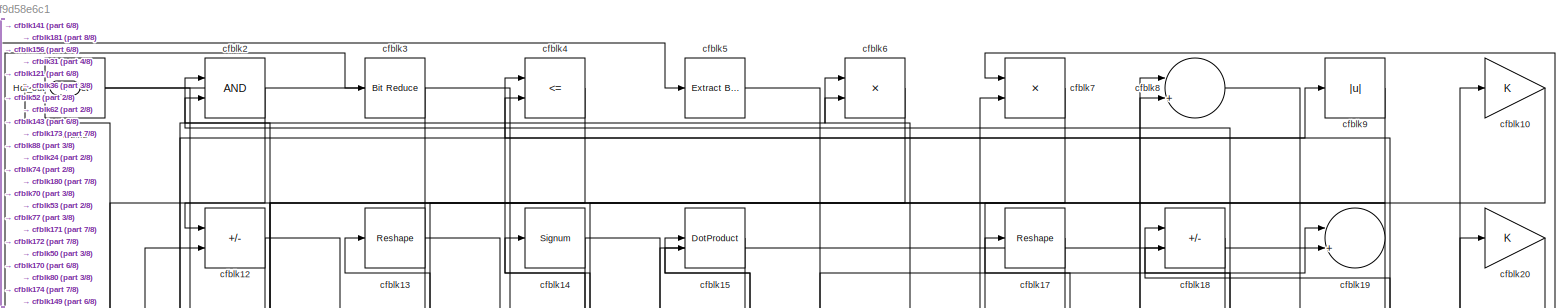
[diagram: root canvas - part 1/8, full width, top band]
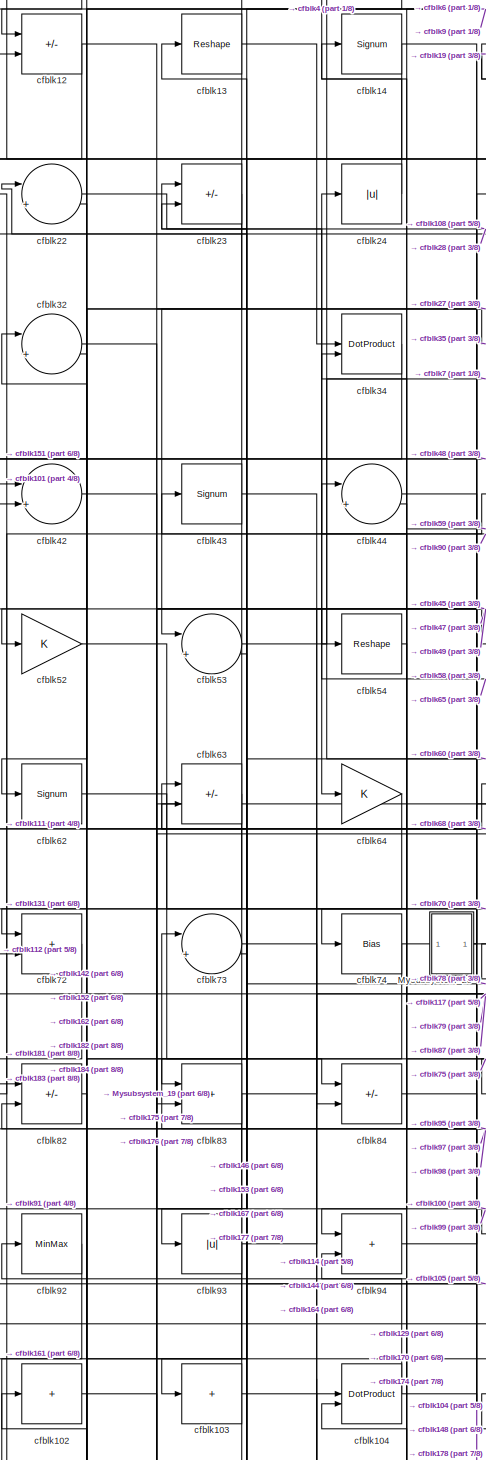
[diagram: root canvas - part 2/8, top left region]
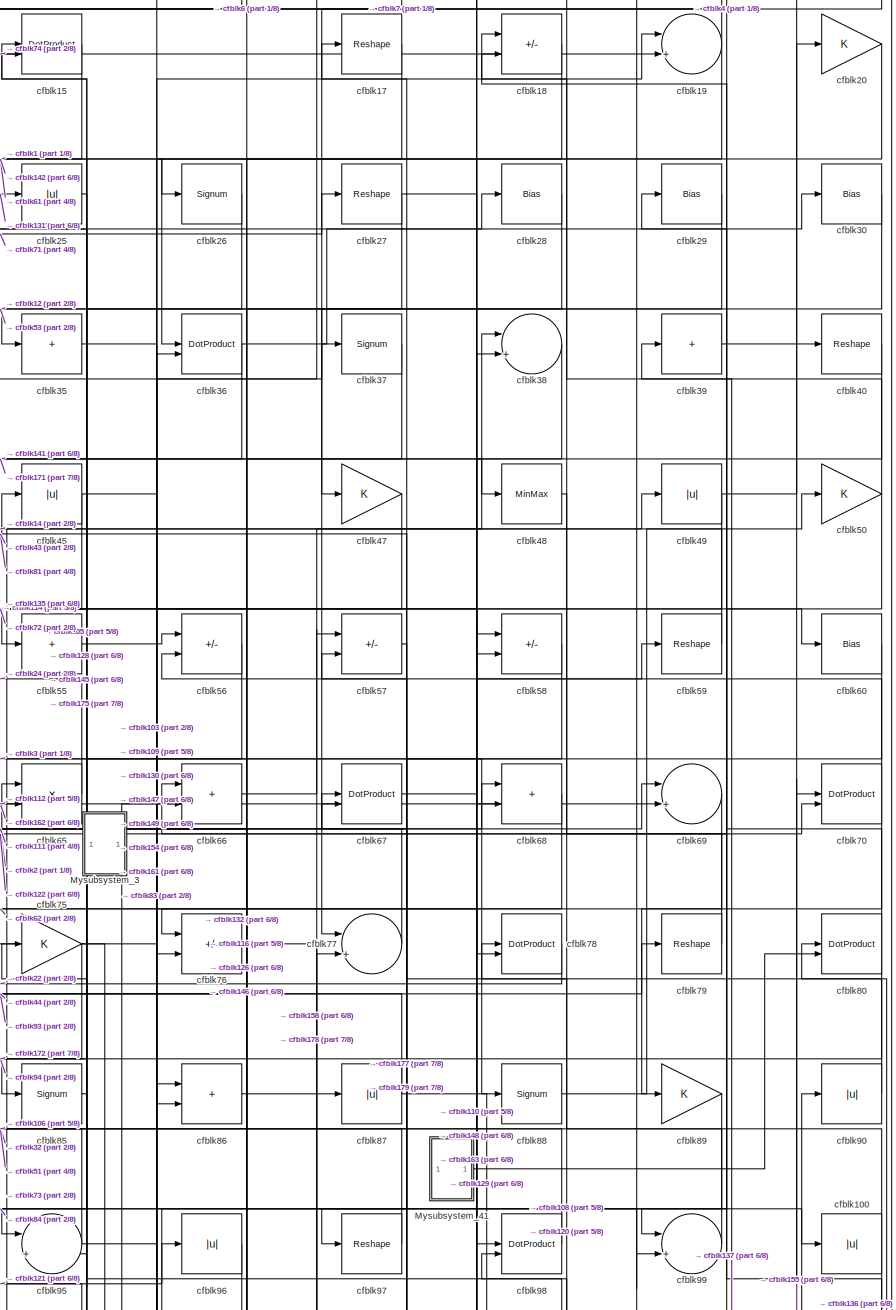
[diagram: root canvas - part 3/8, top right region]
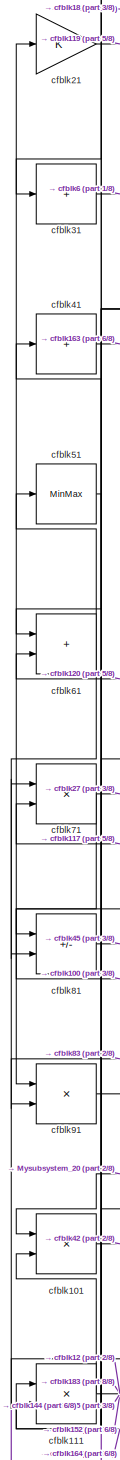
[diagram: root canvas - part 4/8, middle left region]
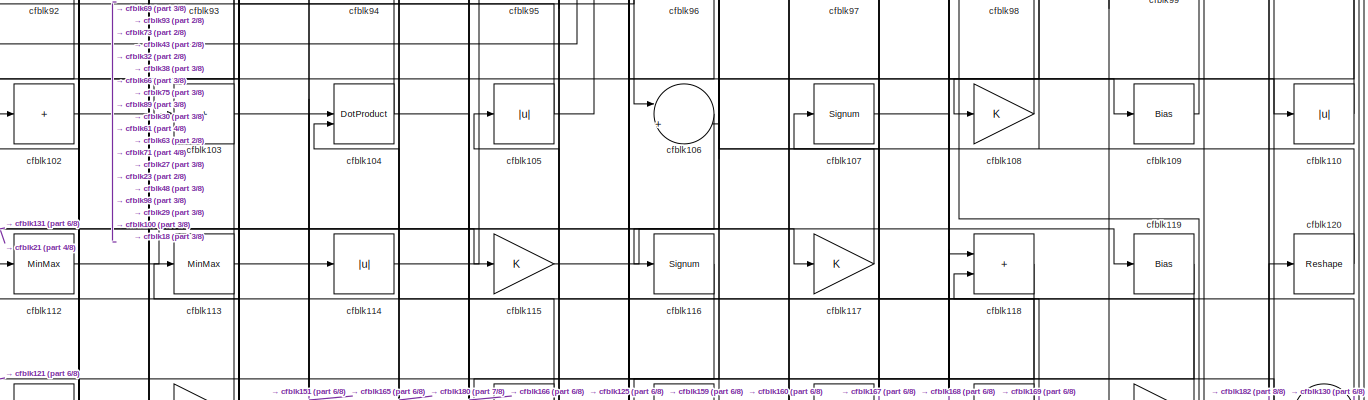
[diagram: root canvas - part 5/8, full width, middle band]
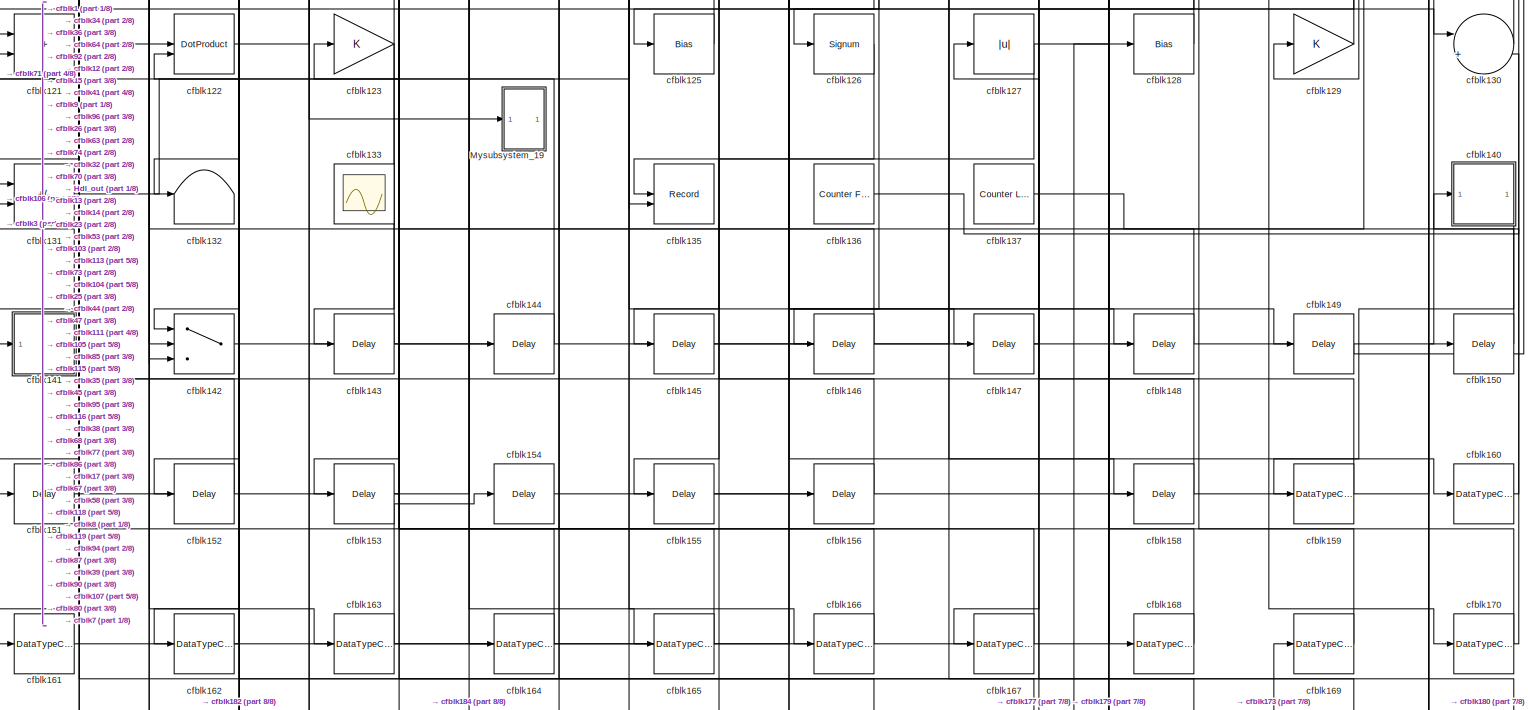
[diagram: root canvas - part 6/8, full width, bottom band]
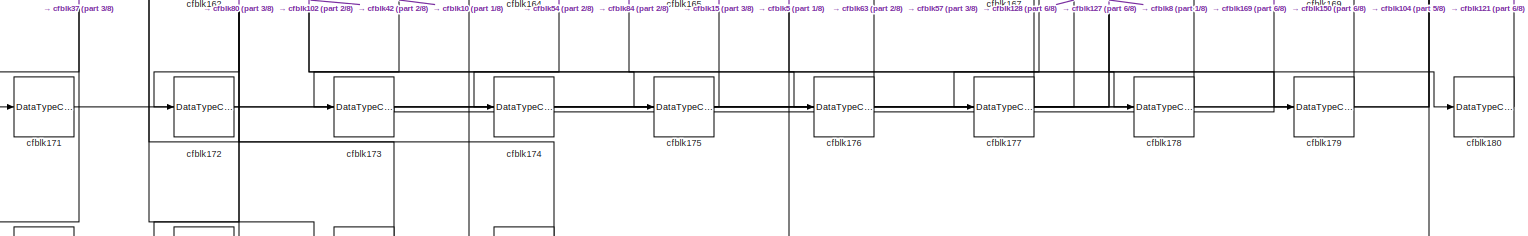
[diagram: root canvas - part 7/8, full width, bottom band]
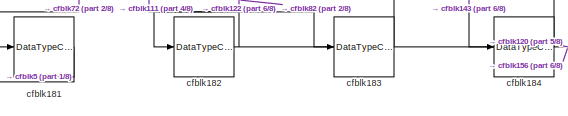
[diagram: root canvas - part 8/8, bottom left region]
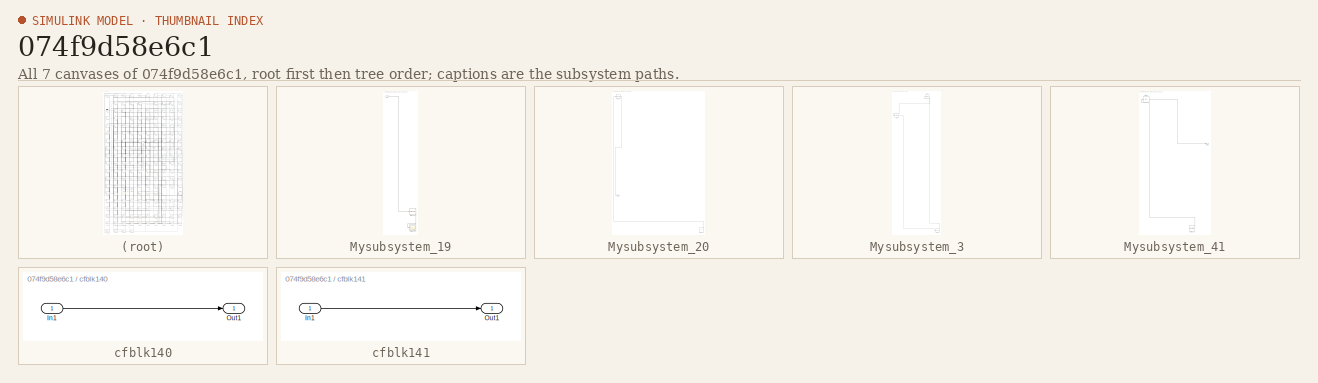
[diagram: thumbnail index - all 7 canvases of the model, root first then tree order]
MODEL slx_074f9d58e6c1
KIND model
CONFIG AbsTol = auto
CONFIG EnableMultiTasking = off
CONFIG FixedStep = auto
CONFIG MaxStep = auto
CONFIG MinStep = auto
CONFIG RelTol = 1e-3
CONFIG SampleTimeConstraint = Unconstrained
CONFIG SolverName = VariableStepAuto
CONFIG StartTime = 0.0
CONFIG StopTime = 10.0
BLOCK [Outport] Hdl_out
  OutDataTypeStr = uint8
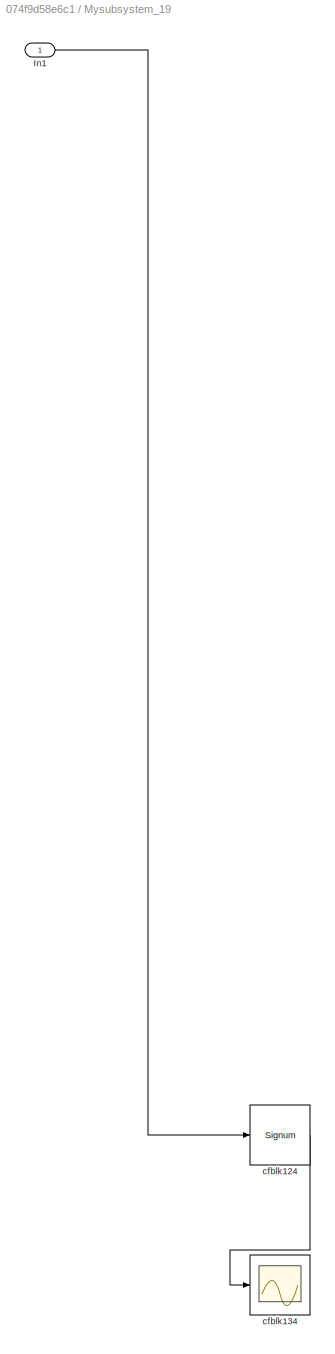
BLOCK [SubSystem] Mysubsystem_19
  RTWFcnName = Mysubsystem_19
  RTWFcnNameOpts = User specified
  RTWFileNameOpts = Use function name
  RTWSystemCode = Reusable function
  TreatAsAtomicUnit = on
BLOCK [Inport] Mysubsystem_19/In1
BLOCK [Signum] Mysubsystem_19/cfblk124
BLOCK [Scope] Mysubsystem_19/cfblk134
  Floating = off
  NumInputPorts = 1
  ScopeSpecificationString = Simulink.scopes.TimeScopeBlockCfg('CurrentConfiguration', extmgr.ConfigurationSet(extmgr.Configuration('Core','General UI',true),extmgr.Configuration('Core','Source UI',true),extmgr.Configuration('Sources','WiredSimulink',true,'DataLoggingVariableName','ScopeData2','DataLoggingSaveFormat','Array','DataLoggingLimitDataPoints',true,'DataLoggingDecimation','1'),extmgr.Configuration('Visuals','Time Do...<+868ch>
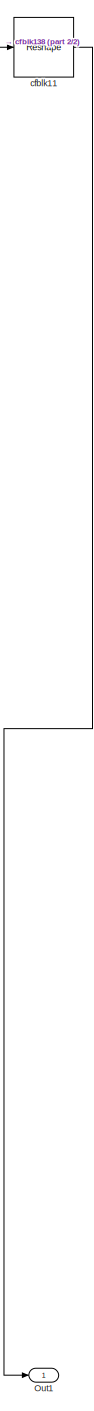
[diagram: Mysubsystem_20 - part 1/2, left side, full height]
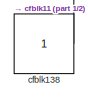
[diagram: Mysubsystem_20 - part 2/2, bottom right region]
BLOCK [SubSystem] Mysubsystem_20
  RTWFcnName = Mysubsystem_20
  RTWFcnNameOpts = User specified
  RTWFileNameOpts = Use function name
  RTWSystemCode = Reusable function
  TreatAsAtomicUnit = on
BLOCK [Outport] Mysubsystem_20/Out1
BLOCK [Reshape] Mysubsystem_20/cfblk11
BLOCK [Constant] Mysubsystem_20/cfblk138
  SampleTime = -1
BLOCK [SubSystem] Mysubsystem_3
  RTWFcnName = Mysubsystem_3
  RTWFcnNameOpts = User specified
  RTWFileNameOpts = Use function name
  RTWSystemCode = Reusable function
  TreatAsAtomicUnit = on
BLOCK [Delay] Mysubsystem_3/cfblk157
  InputPortMap = u0
  SampleTime = 1
BLOCK [MinMax] Mysubsystem_3/cfblk16
BLOCK [Signum] Mysubsystem_3/cfblk33
BLOCK [SubSystem] Mysubsystem_41
  RTWFcnName = Mysubsystem_41
  RTWFcnNameOpts = User specified
  RTWFileNameOpts = Use function name
  RTWSystemCode = Reusable function
  TreatAsAtomicUnit = on
BLOCK [Outport] Mysubsystem_41/Out1
BLOCK [Reference] Mysubsystem_41/cfblk139  REF=hdlsllib/Sources/Counter
Free-Running
  SourceBlock = hdlsllib/Sources/Counter\nFree-Running
  SourceType = Counter Free-Running
BLOCK [Abs] Mysubsystem_41/cfblk46
  SaturateOnIntegerOverflow = off
BLOCK [Reference] cfblk1  REF=simulink/Logic and Bit
Operations/Bit Set
  LibrarySourceBlock = hdlsllib/Logic and Bit\nOperations/Bit Set
  SourceBlock = simulink/Logic and Bit\nOperations/Bit Set
  SourceType = Bit Set
BLOCK [Gain] cfblk10
  OutDataTypeStr = uint8
BLOCK [Abs] cfblk100
  OutDataTypeStr = uint8
  SaturateOnIntegerOverflow = off
BLOCK [Product] cfblk101
  Inputs = */
  OutDataTypeStr = uint8
  RndMeth = Zero
  SaturateOnIntegerOverflow = on
BLOCK [Sum] cfblk102
  IconShape = rectangular
  Inputs = +
  OutDataTypeStr = uint8
BLOCK [Sum] cfblk103
  IconShape = rectangular
  Inputs = +
  OutDataTypeStr = uint8
BLOCK [DotProduct] cfblk104
  OutDataTypeStr = uint8
BLOCK [Abs] cfblk105
  OutDataTypeStr = uint8
  SaturateOnIntegerOverflow = off
BLOCK [Sum] cfblk106
  Inputs = |++
  OutDataTypeStr = uint8
BLOCK [Signum] cfblk107
BLOCK [Gain] cfblk108
  OutDataTypeStr = uint8
BLOCK [Bias] cfblk109
  Bias = 0.0
  SaturateOnIntegerOverflow = off
BLOCK [Abs] cfblk110
  OutDataTypeStr = uint8
  SaturateOnIntegerOverflow = off
BLOCK [Product] cfblk111
  Inputs = */
  OutDataTypeStr = uint8
  RndMeth = Zero
  SaturateOnIntegerOverflow = on
BLOCK [MinMax] cfblk112
  OutDataTypeStr = uint8
BLOCK [MinMax] cfblk113
  OutDataTypeStr = uint8
BLOCK [Abs] cfblk114
  OutDataTypeStr = uint8
  SaturateOnIntegerOverflow = off
BLOCK [Gain] cfblk115
  OutDataTypeStr = uint8
BLOCK [Signum] cfblk116
BLOCK [Gain] cfblk117
  OutDataTypeStr = uint8
BLOCK [Sum] cfblk118
  IconShape = rectangular
  OutDataTypeStr = uint8
BLOCK [Bias] cfblk119
  Bias = 0.0
  SaturateOnIntegerOverflow = off
BLOCK [Sum] cfblk12
  IconShape = rectangular
  Inputs = +-
  OutDataTypeStr = uint8
BLOCK [Reshape] cfblk120
BLOCK [Sum] cfblk121
  IconShape = rectangular
  OutDataTypeStr = uint8
BLOCK [DotProduct] cfblk122
  OutDataTypeStr = uint8
BLOCK [Gain] cfblk123
  OutDataTypeStr = uint8
BLOCK [Bias] cfblk125
  Bias = 0.0
  SaturateOnIntegerOverflow = off
BLOCK [Signum] cfblk126
BLOCK [Abs] cfblk127
  OutDataTypeStr = uint8
  SaturateOnIntegerOverflow = off
BLOCK [Bias] cfblk128
  Bias = 0.0
  SaturateOnIntegerOverflow = off
BLOCK [Gain] cfblk129
  OutDataTypeStr = uint8
BLOCK [Reshape] cfblk13
BLOCK [Sum] cfblk130
  Inputs = |++
  OutDataTypeStr = uint8
BLOCK [Sum] cfblk131
  IconShape = rectangular
  Inputs = +-
  OutDataTypeStr = uint8
BLOCK [Terminator] cfblk132
BLOCK [Scope] cfblk133
  Floating = on
  NumInputPorts = 1
  ScopeSpecificationString = Simulink.scopes.TimeScopeBlockCfg('CurrentConfiguration', extmgr.ConfigurationSet(extmgr.Configuration('Core','General UI',true,'FigureColor',[0.156862745098039 0.156862745098039 0.156862745098039]),extmgr.Configuration('Core','Source UI',true),extmgr.Configuration('Sources','WiredSimulink',true,'DataLoggingVariableName','ScopeData1','DataLoggingSaveFormat','StructureWithTime','DataLoggingLimitDat...<+2713ch>
BLOCK [Record] cfblk135
  CompatibilityTag = XY
  FileSettingsInternal = {"entries":[{"content":{"excelSettings":{"content":{},"type":"Streamout.ExcelSettings"}},"type":"Streamout.FileSettingStorage","uuid":""}],"packageUris":["http:\/\/schema.mathworks.com\/mf0\/streamout_blocks\/R2020a"],"version":"1.0"}
  Layout = [1 1]
  SignalsInternal = {"entries":[{"content":{"signals":[{"content":{"blockPath":[],"dimensions":[1],"domain":"","lineColor":"#a2142f","plots":[1],"port":1,"signalID":34484,"signalName":"cfblk126"},"type":"RecordBlkView.Signal","uuid":""},{"content":{"blockPath":[],"dimensions":[1],"domain":"","lineColor":"#139fff","plots":[1],"port":2,"signalID":34487,"signalName":"cfblk47"},"type":"RecordBlkView.Signal","uuid":""}]},...<+143ch>
  VisualizationBindings = {"xyplotplugin":{"info":[{"series":[{"bindingParametersList":[{"parameter":"X-Axis","signalID":34484,"signalName":"cfblk126"},{"parameter":"Y-Axis","signalID":34487,"signalName":"cfblk47"}],"seriesID":17854}],"subplotID":1}]}}
  st = -1
BLOCK [Reference] cfblk136  REF=hdlsllib/Sources/Counter
Free-Running
  SourceBlock = hdlsllib/Sources/Counter\nFree-Running
  SourceType = Counter Free-Running
BLOCK [Reference] cfblk137  REF=hdlsllib/Sources/Counter
Limited
  SourceBlock = hdlsllib/Sources/Counter\nLimited
  SourceType = Counter Limited
BLOCK [Signum] cfblk14
BLOCK [SubSystem] cfblk140
  LibrarySourceBlock = hdlsllib/Ports &\nSubsystems/Subsystem
BLOCK [Inport] cfblk140/In1
BLOCK [Outport] cfblk140/Out1
BLOCK [SubSystem] cfblk141
  LibrarySourceBlock = hdlsllib/Ports &\nSubsystems/Subsystem
BLOCK [Inport] cfblk141/In1
BLOCK [Outport] cfblk141/Out1
BLOCK [Switch] cfblk142
  InputSameDT = off
  OutDataTypeStr = uint8
  SaturateOnIntegerOverflow = off
BLOCK [Delay] cfblk143
  InputPortMap = u0
  SampleTime = 1
BLOCK [Delay] cfblk144
  InputPortMap = u0
  SampleTime = 1
BLOCK [Delay] cfblk145
  InputPortMap = u0
  SampleTime = 1
BLOCK [Delay] cfblk146
  InputPortMap = u0
  SampleTime = 1
BLOCK [Delay] cfblk147
  InputPortMap = u0
  SampleTime = 1
BLOCK [Delay] cfblk148
  InputPortMap = u0
  SampleTime = 1
BLOCK [Delay] cfblk149
  InputPortMap = u0
  SampleTime = 1
BLOCK [DotProduct] cfblk15
  OutDataTypeStr = uint8
BLOCK [Delay] cfblk150
  InputPortMap = u0
  SampleTime = 1
BLOCK [Delay] cfblk151
  InputPortMap = u0
  SampleTime = 1
BLOCK [Delay] cfblk152
  InputPortMap = u0
  SampleTime = 1
BLOCK [Delay] cfblk153
  InputPortMap = u0
  SampleTime = 1
BLOCK [Delay] cfblk154
  InputPortMap = u0
  SampleTime = 1
BLOCK [Delay] cfblk155
  InputPortMap = u0
  SampleTime = 1
BLOCK [Delay] cfblk156
  InputPortMap = u0
  SampleTime = 1
BLOCK [Delay] cfblk158
  InputPortMap = u0
  SampleTime = 1
BLOCK [DataTypeConversion] cfblk159
  OutDataTypeStr = uint8
  RndMeth = Floor
  SaturateOnIntegerOverflow = off
BLOCK [DataTypeConversion] cfblk160
  OutDataTypeStr = uint8
  RndMeth = Floor
  SaturateOnIntegerOverflow = off
BLOCK [DataTypeConversion] cfblk161
  OutDataTypeStr = uint8
  RndMeth = Floor
  SaturateOnIntegerOverflow = off
BLOCK [DataTypeConversion] cfblk162
  OutDataTypeStr = uint8
  RndMeth = Floor
  SaturateOnIntegerOverflow = off
BLOCK [DataTypeConversion] cfblk163
  OutDataTypeStr = uint8
  RndMeth = Floor
  SaturateOnIntegerOverflow = off
BLOCK [DataTypeConversion] cfblk164
  OutDataTypeStr = uint8
  RndMeth = Floor
  SaturateOnIntegerOverflow = off
BLOCK [DataTypeConversion] cfblk165
  OutDataTypeStr = uint8
  RndMeth = Floor
  SaturateOnIntegerOverflow = off
BLOCK [DataTypeConversion] cfblk166
  OutDataTypeStr = uint8
  RndMeth = Floor
  SaturateOnIntegerOverflow = off
BLOCK [DataTypeConversion] cfblk167
  OutDataTypeStr = uint8
  RndMeth = Floor
  SaturateOnIntegerOverflow = off
BLOCK [DataTypeConversion] cfblk168
  OutDataTypeStr = uint8
  RndMeth = Floor
  SaturateOnIntegerOverflow = off
BLOCK [DataTypeConversion] cfblk169
  OutDataTypeStr = uint8
  RndMeth = Floor
  SaturateOnIntegerOverflow = off
BLOCK [Reshape] cfblk17
BLOCK [DataTypeConversion] cfblk170
  OutDataTypeStr = uint8
  RndMeth = Floor
  SaturateOnIntegerOverflow = off
BLOCK [DataTypeConversion] cfblk171
  OutDataTypeStr = uint8
  RndMeth = Floor
  SaturateOnIntegerOverflow = off
BLOCK [DataTypeConversion] cfblk172
  OutDataTypeStr = uint8
  RndMeth = Floor
  SaturateOnIntegerOverflow = off
BLOCK [DataTypeConversion] cfblk173
  OutDataTypeStr = uint8
  RndMeth = Floor
  SaturateOnIntegerOverflow = off
BLOCK [DataTypeConversion] cfblk174
  OutDataTypeStr = uint8
  RndMeth = Floor
  SaturateOnIntegerOverflow = off
BLOCK [DataTypeConversion] cfblk175
  OutDataTypeStr = uint8
  RndMeth = Floor
  SaturateOnIntegerOverflow = off
BLOCK [DataTypeConversion] cfblk176
  OutDataTypeStr = uint8
  RndMeth = Floor
  SaturateOnIntegerOverflow = off
BLOCK [DataTypeConversion] cfblk177
  OutDataTypeStr = uint8
  RndMeth = Floor
  SaturateOnIntegerOverflow = off
BLOCK [DataTypeConversion] cfblk178
  OutDataTypeStr = uint8
  RndMeth = Floor
  SaturateOnIntegerOverflow = off
BLOCK [DataTypeConversion] cfblk179
  OutDataTypeStr = uint8
  RndMeth = Floor
  SaturateOnIntegerOverflow = off
BLOCK [Sum] cfblk18
  IconShape = rectangular
  Inputs = +-
  OutDataTypeStr = uint8
BLOCK [DataTypeConversion] cfblk180
  OutDataTypeStr = uint8
  RndMeth = Floor
  SaturateOnIntegerOverflow = off
BLOCK [DataTypeConversion] cfblk181
  OutDataTypeStr = uint8
  RndMeth = Floor
  SaturateOnIntegerOverflow = off
BLOCK [DataTypeConversion] cfblk182
  OutDataTypeStr = uint8
  RndMeth = Floor
  SaturateOnIntegerOverflow = off
BLOCK [DataTypeConversion] cfblk183
  OutDataTypeStr = uint8
  RndMeth = Floor
  SaturateOnIntegerOverflow = off
BLOCK [DataTypeConversion] cfblk184
  OutDataTypeStr = uint8
  RndMeth = Floor
  SaturateOnIntegerOverflow = off
BLOCK [Sum] cfblk19
  Inputs = |++
  OutDataTypeStr = uint8
BLOCK [Logic] cfblk2
  AllPortsSameDT = off
  OutDataTypeStr = boolean
BLOCK [Gain] cfblk20
  OutDataTypeStr = uint8
BLOCK [Gain] cfblk21
  OutDataTypeStr = uint8
BLOCK [Sum] cfblk22
  Inputs = |++
  OutDataTypeStr = uint8
BLOCK [Sum] cfblk23
  IconShape = rectangular
  Inputs = +-
  OutDataTypeStr = uint8
BLOCK [Abs] cfblk24
  OutDataTypeStr = uint8
  SaturateOnIntegerOverflow = off
BLOCK [Abs] cfblk25
  OutDataTypeStr = uint8
  SaturateOnIntegerOverflow = off
BLOCK [Signum] cfblk26
BLOCK [Reshape] cfblk27
BLOCK [Bias] cfblk28
  Bias = 0.0
  SaturateOnIntegerOverflow = off
BLOCK [Bias] cfblk29
  Bias = 0.0
  SaturateOnIntegerOverflow = off
BLOCK [Reference] cfblk3  REF=hdlsllib/Logic and Bit
Operations/Bit Reduce
  SourceBlock = hdlsllib/Logic and Bit\nOperations/Bit Reduce
  SourceType = Bit Reduce
BLOCK [Bias] cfblk30
  Bias = 0.0
  SaturateOnIntegerOverflow = off
BLOCK [Sum] cfblk31
  IconShape = rectangular
  Inputs = +
  OutDataTypeStr = uint8
BLOCK [Sum] cfblk32
  Inputs = |++
  OutDataTypeStr = uint8
BLOCK [DotProduct] cfblk34
  OutDataTypeStr = uint8
BLOCK [Sum] cfblk35
  IconShape = rectangular
  Inputs = +
  OutDataTypeStr = uint8
BLOCK [DotProduct] cfblk36
  OutDataTypeStr = uint8
BLOCK [Signum] cfblk37
BLOCK [Sum] cfblk38
  Inputs = |++
  OutDataTypeStr = uint8
BLOCK [Sum] cfblk39
  IconShape = rectangular
  Inputs = +
  OutDataTypeStr = uint8
BLOCK [RelationalOperator] cfblk4
  InputSameDT = off
  Operator = <=
  OutDataTypeStr = boolean
BLOCK [Reshape] cfblk40
BLOCK [Sum] cfblk41
  IconShape = rectangular
  Inputs = +
  OutDataTypeStr = uint8
BLOCK [Sum] cfblk42
  Inputs = |++
  OutDataTypeStr = uint8
BLOCK [Signum] cfblk43
BLOCK [Sum] cfblk44
  Inputs = |++
  OutDataTypeStr = uint8
BLOCK [Abs] cfblk45
  OutDataTypeStr = uint8
  SaturateOnIntegerOverflow = off
BLOCK [Gain] cfblk47
  OutDataTypeStr = uint8
BLOCK [MinMax] cfblk48
  OutDataTypeStr = uint8
BLOCK [Abs] cfblk49
  OutDataTypeStr = uint8
  SaturateOnIntegerOverflow = off
BLOCK [Reference] cfblk5  REF=simulink/Logic and Bit
Operations/Extract Bits
  LibrarySourceBlock = hdlsllib/Logic and Bit\nOperations/Extract Bits
  SourceBlock = simulink/Logic and Bit\nOperations/Extract Bits
  SourceType = Extract Bits
BLOCK [Gain] cfblk50
  OutDataTypeStr = uint8
BLOCK [MinMax] cfblk51
  OutDataTypeStr = uint8
BLOCK [Gain] cfblk52
  OutDataTypeStr = uint8
BLOCK [Sum] cfblk53
  Inputs = |++
  OutDataTypeStr = uint8
BLOCK [Reshape] cfblk54
BLOCK [Sum] cfblk55
  IconShape = rectangular
  Inputs = +
  OutDataTypeStr = uint8
BLOCK [Sum] cfblk56
  IconShape = rectangular
  Inputs = +-
  OutDataTypeStr = uint8
BLOCK [Sum] cfblk57
  IconShape = rectangular
  Inputs = +-
  OutDataTypeStr = uint8
BLOCK [Sum] cfblk58
  IconShape = rectangular
  Inputs = +-
  OutDataTypeStr = uint8
BLOCK [Reshape] cfblk59
BLOCK [Product] cfblk6
  Inputs = */
  OutDataTypeStr = uint8
  RndMeth = Zero
  SaturateOnIntegerOverflow = on
BLOCK [Bias] cfblk60
  Bias = 0.0
  SaturateOnIntegerOverflow = off
BLOCK [Sum] cfblk61
  IconShape = rectangular
  OutDataTypeStr = uint8
BLOCK [Signum] cfblk62
BLOCK [Sum] cfblk63
  IconShape = rectangular
  Inputs = +-
  OutDataTypeStr = uint8
BLOCK [Gain] cfblk64
  OutDataTypeStr = uint8
BLOCK [Product] cfblk65
  Inputs = */
  OutDataTypeStr = uint8
  RndMeth = Zero
  SaturateOnIntegerOverflow = on
BLOCK [Sum] cfblk66
  IconShape = rectangular
  OutDataTypeStr = uint8
BLOCK [DotProduct] cfblk67
  OutDataTypeStr = uint8
BLOCK [Sum] cfblk68
  IconShape = rectangular
  OutDataTypeStr = uint8
BLOCK [Sum] cfblk69
  Inputs = |++
  OutDataTypeStr = uint8
BLOCK [Product] cfblk7
  Inputs = */
  OutDataTypeStr = uint8
  RndMeth = Zero
  SaturateOnIntegerOverflow = on
BLOCK [DotProduct] cfblk70
  OutDataTypeStr = uint8
BLOCK [Product] cfblk71
  Inputs = */
  OutDataTypeStr = uint8
  RndMeth = Zero
  SaturateOnIntegerOverflow = on
BLOCK [Sum] cfblk72
  IconShape = rectangular
  OutDataTypeStr = uint8
BLOCK [Sum] cfblk73
  Inputs = |++
  OutDataTypeStr = uint8
BLOCK [Bias] cfblk74
  Bias = 0.0
  SaturateOnIntegerOverflow = off
BLOCK [Gain] cfblk75
  OutDataTypeStr = uint8
BLOCK [Sum] cfblk76
  IconShape = rectangular
  Inputs = +-
  OutDataTypeStr = uint8
BLOCK [Sum] cfblk77
  Inputs = |++
  OutDataTypeStr = uint8
BLOCK [DotProduct] cfblk78
  OutDataTypeStr = uint8
BLOCK [Reshape] cfblk79
BLOCK [Sum] cfblk8
  Inputs = |++
  OutDataTypeStr = uint8
BLOCK [DotProduct] cfblk80
  OutDataTypeStr = uint8
BLOCK [Sum] cfblk81
  IconShape = rectangular
  Inputs = +-
  OutDataTypeStr = uint8
BLOCK [Sum] cfblk82
  IconShape = rectangular
  Inputs = +-
  OutDataTypeStr = uint8
BLOCK [Sum] cfblk83
  IconShape = rectangular
  OutDataTypeStr = uint8
BLOCK [Sum] cfblk84
  IconShape = rectangular
  Inputs = +-
  OutDataTypeStr = uint8
BLOCK [Signum] cfblk85
BLOCK [Sum] cfblk86
  IconShape = rectangular
  OutDataTypeStr = uint8
BLOCK [Abs] cfblk87
  OutDataTypeStr = uint8
  SaturateOnIntegerOverflow = off
BLOCK [Signum] cfblk88
BLOCK [Gain] cfblk89
  OutDataTypeStr = uint8
BLOCK [Abs] cfblk9
  OutDataTypeStr = uint8
  SaturateOnIntegerOverflow = off
BLOCK [Abs] cfblk90
  OutDataTypeStr = uint8
  SaturateOnIntegerOverflow = off
BLOCK [Product] cfblk91
  Inputs = */
  OutDataTypeStr = uint8
  RndMeth = Zero
  SaturateOnIntegerOverflow = on
BLOCK [MinMax] cfblk92
  OutDataTypeStr = uint8
BLOCK [Abs] cfblk93
  OutDataTypeStr = uint8
  SaturateOnIntegerOverflow = off
BLOCK [Sum] cfblk94
  IconShape = rectangular
  OutDataTypeStr = uint8
BLOCK [Sum] cfblk95
  Inputs = |++
  OutDataTypeStr = uint8
BLOCK [Abs] cfblk96
  OutDataTypeStr = uint8
  SaturateOnIntegerOverflow = off
BLOCK [Reshape] cfblk97
BLOCK [DotProduct] cfblk98
  OutDataTypeStr = uint8
BLOCK [Sum] cfblk99
  Inputs = |++
  OutDataTypeStr = uint8
LINE Mysubsystem_19/In1:1 -> Mysubsystem_19/cfblk124:1
LINE Mysubsystem_19/cfblk124:1 -> Mysubsystem_19/cfblk134:1
LINE Mysubsystem_20/cfblk11:1 -> Mysubsystem_20/Out1:1
LINE Mysubsystem_20/cfblk138:1 -> Mysubsystem_20/cfblk11:1
LINE Mysubsystem_20:1 -> cfblk101:1
LINE Mysubsystem_3/cfblk157:1 -> Mysubsystem_3/cfblk16:1
LINE Mysubsystem_3/cfblk16:1 -> Mysubsystem_3/cfblk33:1
LINE Mysubsystem_3/cfblk33:1 -> Mysubsystem_3/cfblk157:1
LINE Mysubsystem_41/cfblk139:1 -> Mysubsystem_41/cfblk46:1
LINE Mysubsystem_41/cfblk46:1 -> Mysubsystem_41/Out1:1
LINE Mysubsystem_41:1 -> cfblk80:2
NET cfblk100:1 -> cfblk106:2, cfblk51:1
LINE cfblk101:1 -> cfblk42:1
LINE cfblk102:1 -> cfblk175:1
LINE cfblk103:1 -> cfblk164:1
NET cfblk104:1 -> cfblk166:1, cfblk32:2
NET cfblk105:1 -> cfblk66:2, cfblk73:2
LINE cfblk106:1 -> cfblk131:2
LINE cfblk107:1 -> cfblk168:1
LINE cfblk108:1 -> cfblk23:1
LINE cfblk109:1 -> cfblk29:1
LINE cfblk10:1 -> cfblk173:1
NET cfblk110:1 -> cfblk18:2, cfblk66:1
NET cfblk111:1 -> cfblk101:2, cfblk12:2, cfblk183:1, cfblk65:1, cfblk69:1
NET cfblk112:1 -> cfblk115:1, cfblk69:2
LINE cfblk113:1 -> cfblk165:1
LINE cfblk114:1 -> cfblk38:1
NET cfblk115:1 -> cfblk117:1, cfblk160:1
LINE cfblk116:1 -> cfblk125:1
NET cfblk117:1 -> cfblk63:1, cfblk71:2
LINE cfblk118:1 -> cfblk167:1
LINE cfblk119:1 -> cfblk121:1
NET cfblk120:1 -> cfblk61:2, cfblk98:2
NET cfblk121:1 -> cfblk96:1, cfblk9:1
LINE cfblk122:1 -> cfblk70:2
LINE cfblk123:1 -> cfblk143:1
LINE cfblk125:1 -> cfblk111:1
LINE cfblk126:1 -> cfblk135:1
NET cfblk127:1 -> cfblk155:1, cfblk179:1
LINE cfblk128:1 -> cfblk15:1
LINE cfblk129:1 -> cfblk94:2
NET cfblk12:1 -> cfblk100:1, cfblk142:2, cfblk35:1, cfblk54:1
LINE cfblk130:1 -> cfblk107:1
LINE cfblk131:1 -> cfblk25:1
LINE cfblk136:1 -> cfblk80:1
LINE cfblk137:1 -> cfblk39:1
LINE cfblk13:1 -> cfblk34:1
LINE cfblk140/In1:1 -> cfblk140/Out1:1
LINE cfblk140:1 -> cfblk159:1
LINE cfblk141/In1:1 -> cfblk141/Out1:1
LINE cfblk141:1 -> cfblk3:1
LINE cfblk142:1 -> cfblk90:1
NET cfblk143:1 -> Hdl_out:1, cfblk184:1
LINE cfblk144:1 -> cfblk71:1
LINE cfblk145:1 -> cfblk77:2
LINE cfblk146:1 -> cfblk23:2
LINE cfblk147:1 -> cfblk67:2
LINE cfblk148:1 -> cfblk58:1
LINE cfblk149:1 -> cfblk7:1
NET cfblk14:1 -> cfblk153:1, cfblk48:1
LINE cfblk150:1 -> cfblk122:1
LINE cfblk151:1 -> cfblk104:1
LINE cfblk152:1 -> cfblk111:2
LINE cfblk153:1 -> cfblk53:2
LINE cfblk154:1 -> cfblk36:2
LINE cfblk155:1 -> cfblk70:1
LINE cfblk156:1 -> cfblk1:1
LINE cfblk158:1 -> cfblk17:1
NET cfblk159:1 -> cfblk105:1, cfblk127:1
LINE cfblk15:1 -> cfblk142:3
LINE cfblk160:1 -> cfblk140:1
LINE cfblk161:1 -> cfblk86:1
LINE cfblk162:1 -> cfblk92:1
NET cfblk163:1 -> cfblk154:1, cfblk38:2
LINE cfblk164:1 -> cfblk41:1
LINE cfblk165:1 -> cfblk123:1
LINE cfblk166:1 -> cfblk113:1
LINE cfblk167:1 -> cfblk13:1
LINE cfblk168:1 -> cfblk118:1
LINE cfblk169:1 -> cfblk118:2
NET cfblk170:1 -> cfblk130:2, cfblk34:2
LINE cfblk171:1 -> cfblk8:1
LINE cfblk172:1 -> cfblk8:2
NET cfblk173:1 -> cfblk150:1, cfblk169:1
LINE cfblk174:1 -> cfblk10:1
LINE cfblk175:1 -> cfblk15:2
LINE cfblk176:1 -> cfblk102:1
NET cfblk177:1 -> cfblk128:1, cfblk63:2
LINE cfblk178:1 -> cfblk57:1
LINE cfblk179:1 -> cfblk57:2
LINE cfblk17:1 -> cfblk26:1
NET cfblk180:1 -> cfblk104:2, cfblk121:2
LINE cfblk181:1 -> cfblk5:1
NET cfblk182:1 -> cfblk120:1, cfblk122:2, cfblk156:1
LINE cfblk183:1 -> cfblk82:1
LINE cfblk184:1 -> cfblk82:2
NET cfblk18:1 -> cfblk61:1, cfblk95:2
NET cfblk19:1 -> cfblk12:1, cfblk76:1
LINE cfblk1:1 -> cfblk36:1
NET cfblk20:1 -> cfblk68:2, cfblk86:2
LINE cfblk21:1 -> cfblk119:1
LINE cfblk22:1 -> cfblk64:1
LINE cfblk23:1 -> cfblk72:1
LINE cfblk24:1 -> cfblk4:1
LINE cfblk25:1 -> cfblk55:1
NET cfblk26:1 -> cfblk162:1, cfblk65:2
NET cfblk27:1 -> cfblk110:1, cfblk53:1
LINE cfblk28:1 -> cfblk85:1
LINE cfblk29:1 -> cfblk47:1
LINE cfblk2:1 -> cfblk31:1
LINE cfblk30:1 -> cfblk116:1
LINE cfblk31:1 -> cfblk6:1
NET cfblk32:1 -> Mysubsystem_19:1, cfblk58:2
LINE cfblk34:1 -> cfblk151:1
LINE cfblk35:1 -> cfblk149:1
NET cfblk36:1 -> cfblk141:1, cfblk30:1
LINE cfblk37:1 -> cfblk171:1
LINE cfblk38:1 -> cfblk146:1
LINE cfblk39:1 -> cfblk20:1
LINE cfblk3:1 -> cfblk88:1
LINE cfblk40:1 -> cfblk78:2
LINE cfblk41:1 -> cfblk163:1
NET cfblk42:1 -> cfblk176:1, cfblk22:2
LINE cfblk43:1 -> cfblk114:1
LINE cfblk44:1 -> cfblk148:1
NET cfblk45:1 -> cfblk103:1, cfblk130:1, cfblk37:1, cfblk60:1, cfblk83:2
NET cfblk47:1 -> cfblk135:2, cfblk84:2
LINE cfblk48:1 -> cfblk108:1
NET cfblk49:1 -> cfblk40:1, cfblk72:2
LINE cfblk4:1 -> cfblk62:1
NET cfblk50:1 -> cfblk2:1, cfblk99:1
LINE cfblk51:1 -> cfblk91:1
LINE cfblk52:1 -> cfblk84:1
LINE cfblk53:1 -> cfblk7:2
LINE cfblk54:1 -> cfblk174:1
LINE cfblk55:1 -> cfblk56:1
LINE cfblk56:1 -> cfblk95:1
LINE cfblk57:1 -> cfblk177:1
LINE cfblk58:1 -> cfblk97:1
LINE cfblk59:1 -> cfblk14:1
LINE cfblk5:1 -> cfblk180:1
NET cfblk60:1 -> cfblk76:2, cfblk83:1
NET cfblk61:1 -> cfblk21:1, cfblk81:2
LINE cfblk62:1 -> cfblk98:1
LINE cfblk63:1 -> cfblk142:1
LINE cfblk64:1 -> cfblk131:1
LINE cfblk65:1 -> cfblk24:1
LINE cfblk66:1 -> cfblk49:1
LINE cfblk67:1 -> cfblk59:1
LINE cfblk68:1 -> cfblk126:1
LINE cfblk69:1 -> cfblk89:1
LINE cfblk6:1 -> cfblk52:1
NET cfblk70:1 -> cfblk6:2, cfblk93:1
NET cfblk71:1 -> cfblk27:1, cfblk81:1
LINE cfblk72:1 -> cfblk181:1
LINE cfblk73:1 -> cfblk144:1
NET cfblk74:1 -> cfblk152:1, cfblk19:2
NET cfblk75:1 -> cfblk109:1, cfblk19:1, cfblk94:1
LINE cfblk76:1 -> cfblk87:1
NET cfblk77:1 -> cfblk2:2, cfblk67:1
LINE cfblk78:1 -> cfblk22:1
LINE cfblk79:1 -> cfblk18:1
LINE cfblk7:1 -> cfblk77:1
NET cfblk80:1 -> cfblk172:1, cfblk4:2
LINE cfblk81:1 -> cfblk45:1
LINE cfblk82:1 -> cfblk182:1
NET cfblk83:1 -> cfblk68:1, cfblk91:2
NET cfblk84:1 -> cfblk178:1, cfblk99:2
LINE cfblk85:1 -> cfblk145:1
LINE cfblk86:1 -> cfblk158:1
NET cfblk87:1 -> cfblk129:1, cfblk44:1
LINE cfblk88:1 -> cfblk50:1
LINE cfblk89:1 -> cfblk106:1
LINE cfblk8:1 -> cfblk170:1
LINE cfblk90:1 -> cfblk43:1
LINE cfblk91:1 -> cfblk42:2
LINE cfblk92:1 -> cfblk161:1
NET cfblk93:1 -> cfblk112:1, cfblk79:1
LINE cfblk94:1 -> cfblk28:1
NET cfblk95:1 -> cfblk147:1, cfblk44:2
LINE cfblk96:1 -> cfblk132:1
NET cfblk97:1 -> cfblk73:1, cfblk75:1
NET cfblk98:1 -> cfblk32:1, cfblk56:2
LINE cfblk99:1 -> cfblk78:1
LINE cfblk9:1 -> cfblk74:1
note: NET lines group one-source signal fan-out (src -> all destinations, sorted); 1:1 wires keep LINE
